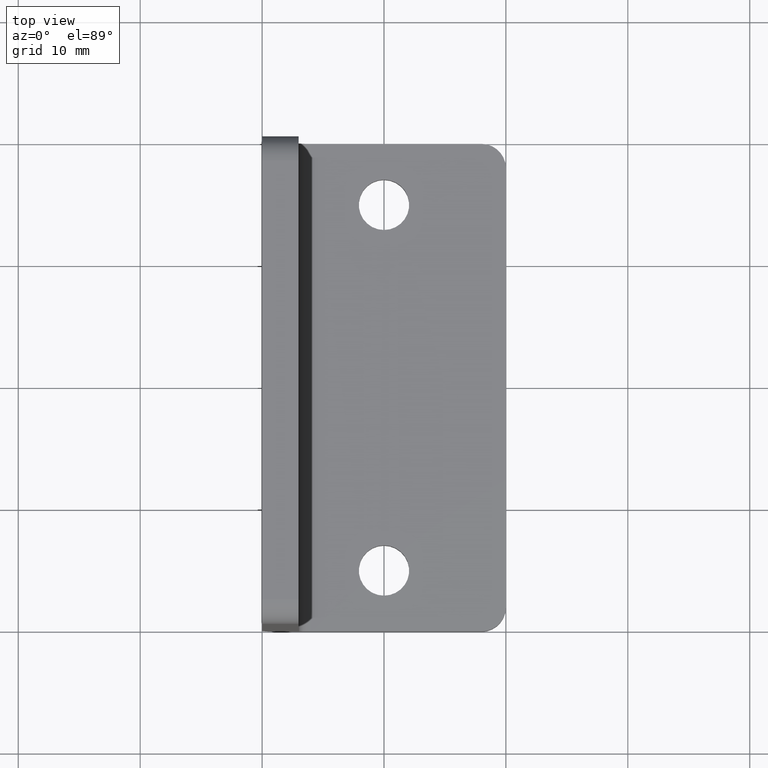
[diagram: clean part render]
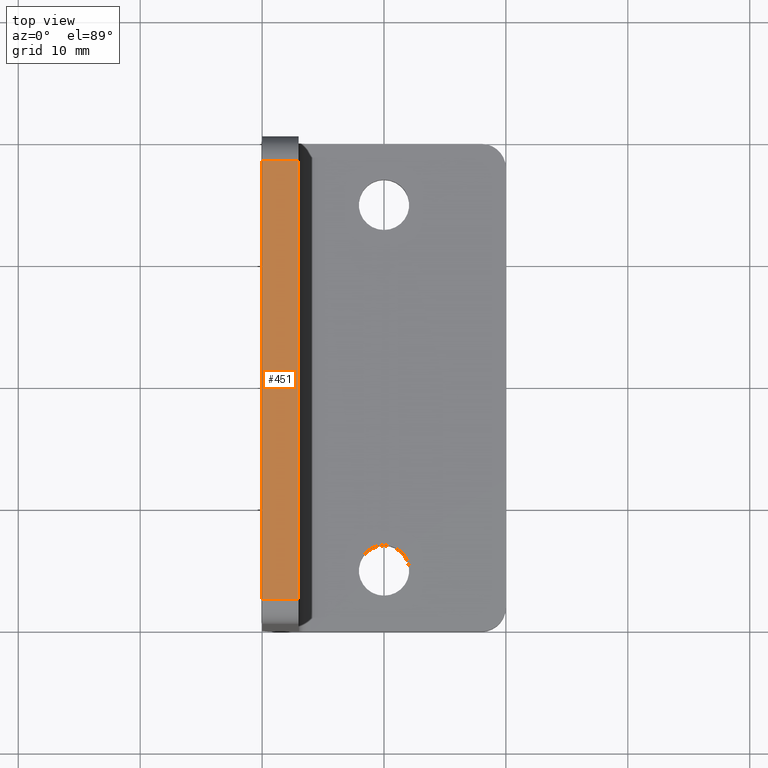
[diagram: same view with one face highlighted and labeled with its STEP entity id]
A machine part, top view. The second image highlights one B-rep face of the part: STEP entity #451.
In plain terms, the highlighted planar face has unit normal (0, 0, 1).
Its self-contained STEP definition (entity closure, byte-faithful):
#18=LINE('',#681,#58);
#26=LINE('',#710,#66);
#31=LINE('',#729,#71);
#32=LINE('',#730,#72);
#58=VECTOR('',#542,36.);
#66=VECTOR('',#564,36.);
#71=VECTOR('',#581,3.);
#72=VECTOR('',#582,3.);
#97=PLANE('',#493);
#121=FACE_OUTER_BOUND('',#151,.T.);
#151=EDGE_LOOP('',(#339,#340,#341,#342));
#207=VERTEX_POINT('',#678);
#208=VERTEX_POINT('',#680);
#221=VERTEX_POINT('',#707);
#222=VERTEX_POINT('',#709);
#251=EDGE_CURVE('',#208,#207,#18,.T.);
#265=EDGE_CURVE('',#221,#222,#26,.T.);
#275=EDGE_CURVE('',#207,#222,#31,.T.);
#276=EDGE_CURVE('',#221,#208,#32,.T.);
#339=ORIENTED_EDGE('',*,*,#251,.T.);
#340=ORIENTED_EDGE('',*,*,#275,.T.);
#341=ORIENTED_EDGE('',*,*,#265,.F.);
#342=ORIENTED_EDGE('',*,*,#276,.T.);
#451=ADVANCED_FACE('',(#121),#97,.T.);
#493=AXIS2_PLACEMENT_3D('',#728,#579,#580);
#542=DIRECTION('',(0.,-1.,0.));
#564=DIRECTION('',(0.,-1.,0.));
#579=DIRECTION('center_axis',(0.,0.,1.));
#580=DIRECTION('ref_axis',(1.,0.,0.));
#581=DIRECTION('',(1.,0.,0.));
#582=DIRECTION('',(-1.,0.,0.));
#678=CARTESIAN_POINT('',(-20.,-18.,40.));
#680=CARTESIAN_POINT('',(-20.,18.,40.));
#681=CARTESIAN_POINT('',(-20.,18.,40.));
#707=CARTESIAN_POINT('',(-17.,18.,40.));
#709=CARTESIAN_POINT('',(-17.,-18.,40.));
#710=CARTESIAN_POINT('',(-17.,18.,40.));
#728=CARTESIAN_POINT('Origin',(-20.15,19.8,40.));
#729=CARTESIAN_POINT('',(-20.,-18.,40.));
#730=CARTESIAN_POINT('',(-17.,18.,40.));